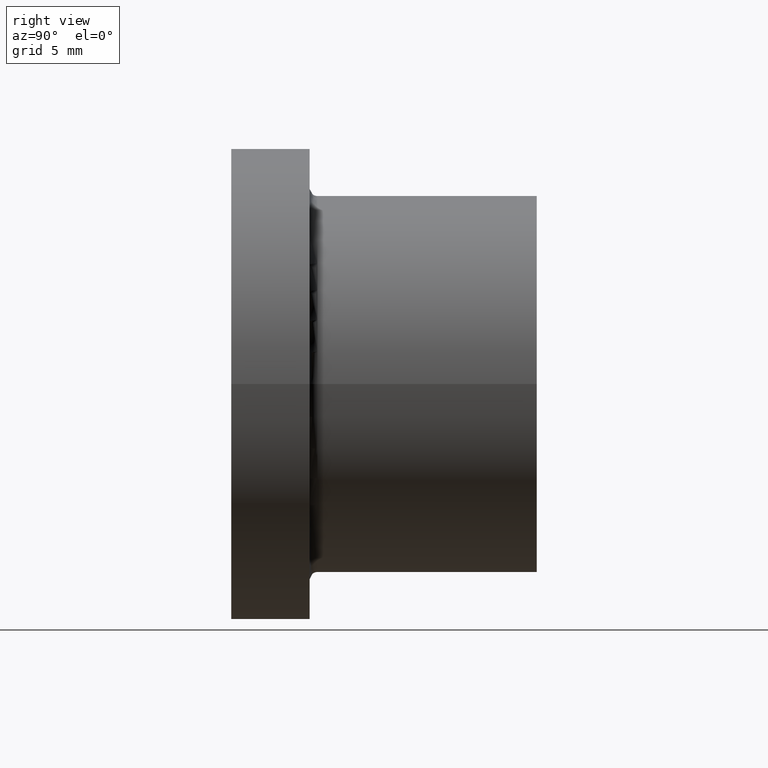
[diagram: clean part render]
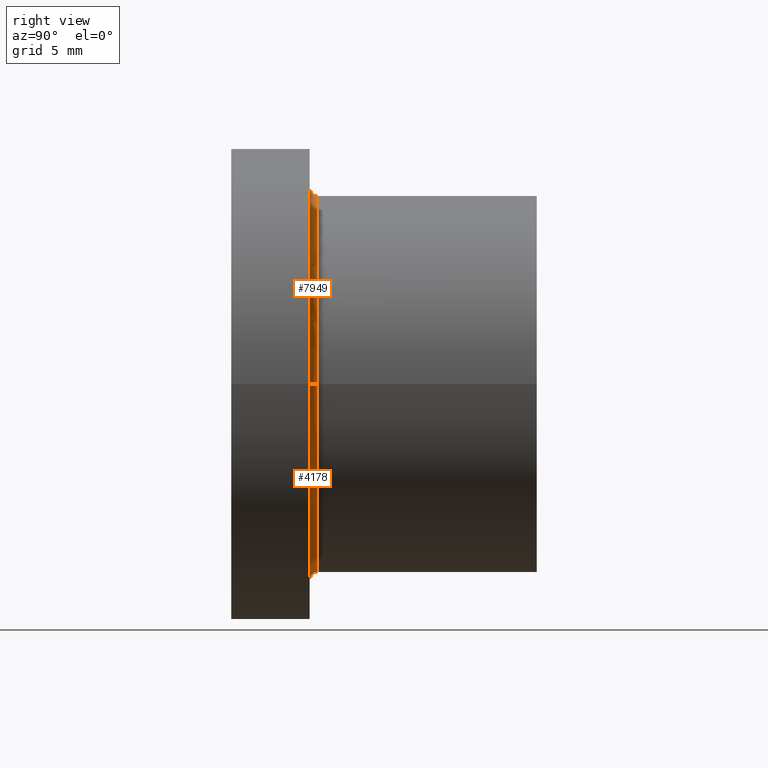
[diagram: same view with one multi-face feature highlighted, each face labeled with its STEP entity id]
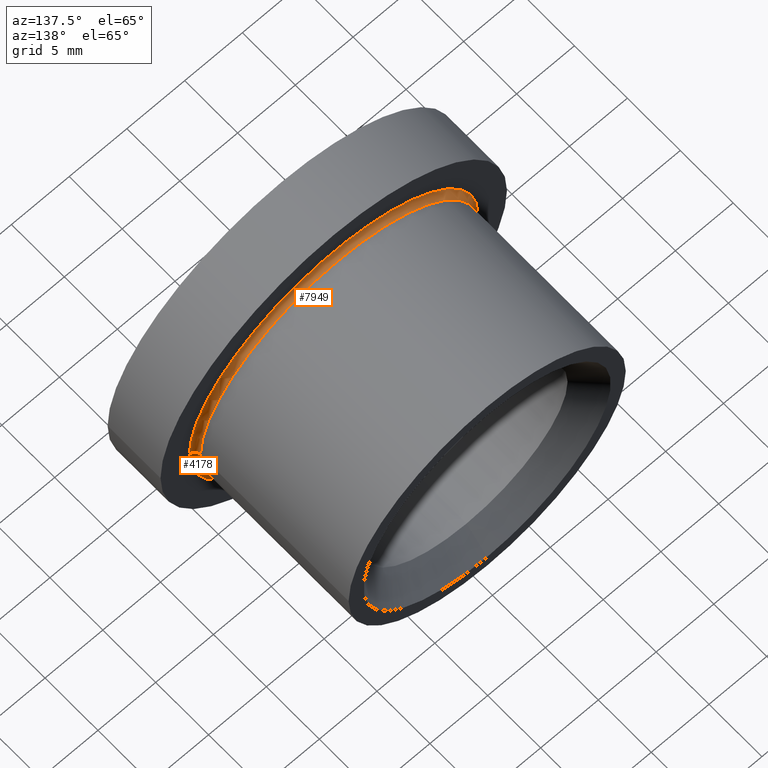
[diagram: same view with one multi-face feature highlighted, each face labeled with its STEP entity id]
A machine part, right view. The highlighted faces form ONE feature: a constant-radius fillet chain: 2 tangent blend faces with common blend radius 0.5 mm. The faces share edges in the B-rep.
A second angle (auxiliary view) of the same feature is appended — it is thin or edge-on in the first view.
Their STEP definitions:
[1] entity #7949 (Torus):
#17 = DIRECTION ( 'NONE',  ( 1.000000000000000000, 0.0000000000000000000, 0.0000000000000000000 ) ) ;
#26 = DIRECTION ( 'NONE',  ( 3.140119997813727100E-017, -1.000000000000000000, 0.0000000000000000000 ) ) ;
#667 = AXIS2_PLACEMENT_3D ( 'NONE', #5024, #26, #6028 ) ;
#1646 = CARTESIAN_POINT ( 'NONE',  ( -12.50000000000000000, 4.999999999999999100, 1.530808498934191500E-015 ) ) ;
#2052 = ORIENTED_EDGE ( 'NONE', *, *, #10480, .F. ) ;
#2073 = CARTESIAN_POINT ( 'NONE',  ( -1.727065998797550400E-016, 5.500000000000000000, 0.0000000000000000000 ) ) ;
#2135 = VERTEX_POINT ( 'NONE', #9703 ) ;
#2430 = CARTESIAN_POINT ( 'NONE',  ( 12.50000000000000000, 5.500000000000000000, 0.0000000000000000000 ) ) ;
#2485 = FACE_OUTER_BOUND ( 'NONE', #6445, .T. ) ;
#2570 = CARTESIAN_POINT ( 'NONE',  ( -12.00000000000000000, 5.500000000000000000, 0.0000000000000000000 ) ) ;
#2605 = CIRCLE ( 'NONE', #5382, 0.5000000000000004400 ) ;
#3044 = CIRCLE ( 'NONE', #10032, 0.5000000000000004400 ) ;
#3060 = EDGE_CURVE ( 'NONE', #4482, #7415, #3044, .T. ) ;
#3100 = DIRECTION ( 'NONE',  ( 3.140119997813727100E-017, -1.000000000000000000, 0.0000000000000000000 ) ) ;
#3291 = EDGE_CURVE ( 'NONE', #11195, #2135, #2605, .T. ) ;
#3427 = DIRECTION ( 'NONE',  ( -1.000000000000000000, 0.0000000000000000000, 0.0000000000000000000 ) ) ;
#4118 = AXIS2_PLACEMENT_3D ( 'NONE', #11046, #3100, #9143 ) ;
#4482 = VERTEX_POINT ( 'NONE', #1646 ) ;
#4880 = DIRECTION ( 'NONE',  ( 1.224646799147353200E-016, 3.845537904261174800E-033, 1.000000000000000000 ) ) ;
#5024 = CARTESIAN_POINT ( 'NONE',  ( -1.570059998906864000E-016, 4.999999999999999100, 0.0000000000000000000 ) ) ;
#5382 = AXIS2_PLACEMENT_3D ( 'NONE', #2430, #9345, #3427 ) ;
#6028 = DIRECTION ( 'NONE',  ( 1.000000000000000000, 0.0000000000000000000, 0.0000000000000000000 ) ) ;
#6401 = AXIS2_PLACEMENT_3D ( 'NONE', #2073, #10944, #17 ) ;
#6445 = EDGE_LOOP ( 'NONE', ( #8411, #10132, #8076, #2052 ) ) ;
#7415 = VERTEX_POINT ( 'NONE', #2570 ) ;
#7949 = ADVANCED_FACE ( 'NONE', ( #2485 ), #9807, .F. ) ;
#8076 = ORIENTED_EDGE ( 'NONE', *, *, #3291, .T. ) ;
#8182 = CARTESIAN_POINT ( 'NONE',  ( 12.50000000000000000, 4.999999999999999100, 0.0000000000000000000 ) ) ;
#8411 = ORIENTED_EDGE ( 'NONE', *, *, #3060, .F. ) ;
#8494 = CIRCLE ( 'NONE', #6401, 12.00000000000000000 ) ;
#8712 = CARTESIAN_POINT ( 'NONE',  ( -12.50000000000000000, 5.500000000000000000, 1.530808498934191500E-015 ) ) ;
#9143 = DIRECTION ( 'NONE',  ( 1.000000000000000000, 3.140119997813727100E-017, 0.0000000000000000000 ) ) ;
#9345 = DIRECTION ( 'NONE',  ( 0.0000000000000000000, 0.0000000000000000000, -1.000000000000000000 ) ) ;
#9703 = CARTESIAN_POINT ( 'NONE',  ( 12.00000000000000000, 5.500000000000000000, 1.469576158976823900E-015 ) ) ;
#9807 = TOROIDAL_SURFACE ( 'NONE', #4118, 12.50000000000000000, 0.5000000000000000000 ) ;
#10032 = AXIS2_PLACEMENT_3D ( 'NONE', #8712, #4880, #12798 ) ;
#10132 = ORIENTED_EDGE ( 'NONE', *, *, #11594, .F. ) ;
#10480 = EDGE_CURVE ( 'NONE', #7415, #2135, #8494, .T. ) ;
#10843 = CIRCLE ( 'NONE', #667, 12.50000000000000000 ) ;
#10944 = DIRECTION ( 'NONE',  ( -3.140119997813727100E-017, 1.000000000000000000, -0.0000000000000000000 ) ) ;
#11046 = CARTESIAN_POINT ( 'NONE',  ( -1.727065998797550400E-016, 5.500000000000000000, 0.0000000000000000000 ) ) ;
#11195 = VERTEX_POINT ( 'NONE', #8182 ) ;
#11594 = EDGE_CURVE ( 'NONE', #11195, #4482, #10843, .T. ) ;
#12798 = DIRECTION ( 'NONE',  ( 1.000000000000000000, 0.0000000000000000000, -1.224646799147353500E-016 ) ) ;
[2] entity #4178 (Torus):
#284 = ORIENTED_EDGE ( 'NONE', *, *, #3060, .T. ) ;
#422 = DIRECTION ( 'NONE',  ( 3.140119997813727100E-017, -1.000000000000000000, 0.0000000000000000000 ) ) ;
#1642 = CARTESIAN_POINT ( 'NONE',  ( -1.727065998797550400E-016, 5.500000000000000000, 0.0000000000000000000 ) ) ;
#1646 = CARTESIAN_POINT ( 'NONE',  ( -12.50000000000000000, 4.999999999999999100, 1.530808498934191500E-015 ) ) ;
#2135 = VERTEX_POINT ( 'NONE', #9703 ) ;
#2194 = DIRECTION ( 'NONE',  ( -3.140119997813727100E-017, 1.000000000000000000, -0.0000000000000000000 ) ) ;
#2430 = CARTESIAN_POINT ( 'NONE',  ( 12.50000000000000000, 5.500000000000000000, 0.0000000000000000000 ) ) ;
#2570 = CARTESIAN_POINT ( 'NONE',  ( -12.00000000000000000, 5.500000000000000000, 0.0000000000000000000 ) ) ;
#2605 = CIRCLE ( 'NONE', #5382, 0.5000000000000004400 ) ;
#3044 = CIRCLE ( 'NONE', #10032, 0.5000000000000004400 ) ;
#3060 = EDGE_CURVE ( 'NONE', #4482, #7415, #3044, .T. ) ;
#3291 = EDGE_CURVE ( 'NONE', #11195, #2135, #2605, .T. ) ;
#3427 = DIRECTION ( 'NONE',  ( -1.000000000000000000, 0.0000000000000000000, 0.0000000000000000000 ) ) ;
#3816 = TOROIDAL_SURFACE ( 'NONE', #8715, 12.50000000000000000, 0.5000000000000000000 ) ;
#4178 = ADVANCED_FACE ( 'NONE', ( #9429 ), #3816, .F. ) ;
#4213 = DIRECTION ( 'NONE',  ( 1.000000000000000000, 0.0000000000000000000, 0.0000000000000000000 ) ) ;
#4482 = VERTEX_POINT ( 'NONE', #1646 ) ;
#4789 = CIRCLE ( 'NONE', #9817, 12.50000000000000000 ) ;
#4794 = ORIENTED_EDGE ( 'NONE', *, *, #12723, .F. ) ;
#4880 = DIRECTION ( 'NONE',  ( 1.224646799147353200E-016, 3.845537904261174800E-033, 1.000000000000000000 ) ) ;
#5382 = AXIS2_PLACEMENT_3D ( 'NONE', #2430, #9345, #3427 ) ;
#5560 = DIRECTION ( 'NONE',  ( 3.140119997813727100E-017, -1.000000000000000000, 0.0000000000000000000 ) ) ;
#6018 = CIRCLE ( 'NONE', #8063, 12.00000000000000000 ) ;
#6381 = CARTESIAN_POINT ( 'NONE',  ( -1.570059998906864000E-016, 4.999999999999999100, 0.0000000000000000000 ) ) ;
#7365 = DIRECTION ( 'NONE',  ( 1.000000000000000000, 0.0000000000000000000, 0.0000000000000000000 ) ) ;
#7415 = VERTEX_POINT ( 'NONE', #2570 ) ;
#7968 = ORIENTED_EDGE ( 'NONE', *, *, #3291, .F. ) ;
#8063 = AXIS2_PLACEMENT_3D ( 'NONE', #10295, #2194, #4213 ) ;
#8182 = CARTESIAN_POINT ( 'NONE',  ( 12.50000000000000000, 4.999999999999999100, 0.0000000000000000000 ) ) ;
#8712 = CARTESIAN_POINT ( 'NONE',  ( -12.50000000000000000, 5.500000000000000000, 1.530808498934191500E-015 ) ) ;
#8715 = AXIS2_PLACEMENT_3D ( 'NONE', #1642, #5560, #10613 ) ;
#9345 = DIRECTION ( 'NONE',  ( 0.0000000000000000000, 0.0000000000000000000, -1.000000000000000000 ) ) ;
#9429 = FACE_OUTER_BOUND ( 'NONE', #9617, .T. ) ;
#9617 = EDGE_LOOP ( 'NONE', ( #10020, #284, #4794, #7968 ) ) ;
#9703 = CARTESIAN_POINT ( 'NONE',  ( 12.00000000000000000, 5.500000000000000000, 1.469576158976823900E-015 ) ) ;
#9817 = AXIS2_PLACEMENT_3D ( 'NONE', #6381, #422, #7365 ) ;
#9985 = EDGE_CURVE ( 'NONE', #4482, #11195, #4789, .T. ) ;
#10020 = ORIENTED_EDGE ( 'NONE', *, *, #9985, .F. ) ;
#10032 = AXIS2_PLACEMENT_3D ( 'NONE', #8712, #4880, #12798 ) ;
#10295 = CARTESIAN_POINT ( 'NONE',  ( -1.727065998797550400E-016, 5.500000000000000000, 0.0000000000000000000 ) ) ;
#10613 = DIRECTION ( 'NONE',  ( 1.000000000000000000, 3.140119997813727100E-017, 0.0000000000000000000 ) ) ;
#11195 = VERTEX_POINT ( 'NONE', #8182 ) ;
#12723 = EDGE_CURVE ( 'NONE', #2135, #7415, #6018, .T. ) ;
#12798 = DIRECTION ( 'NONE',  ( 1.000000000000000000, 0.0000000000000000000, -1.224646799147353500E-016 ) ) ;